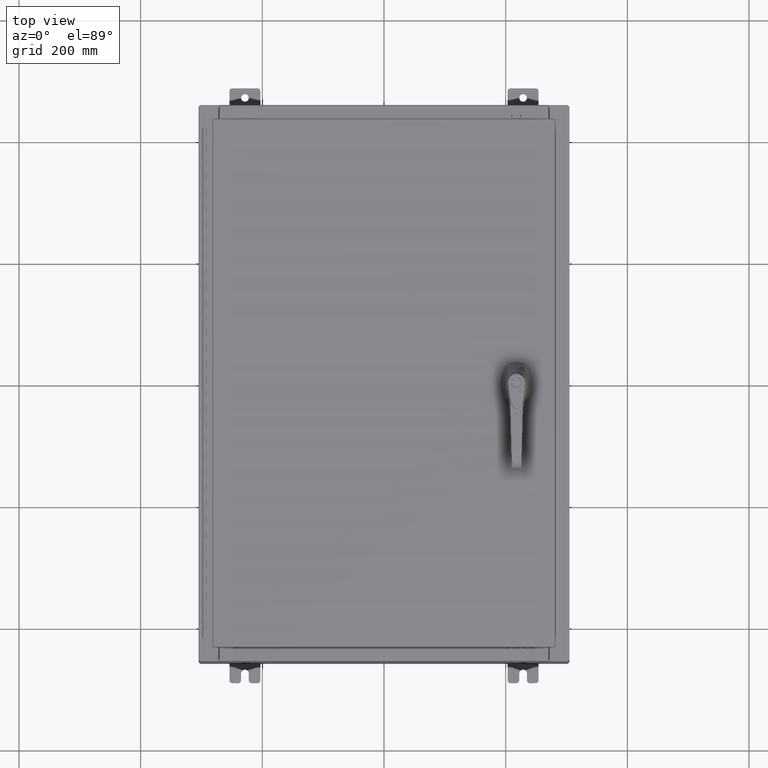
[diagram: clean part render]
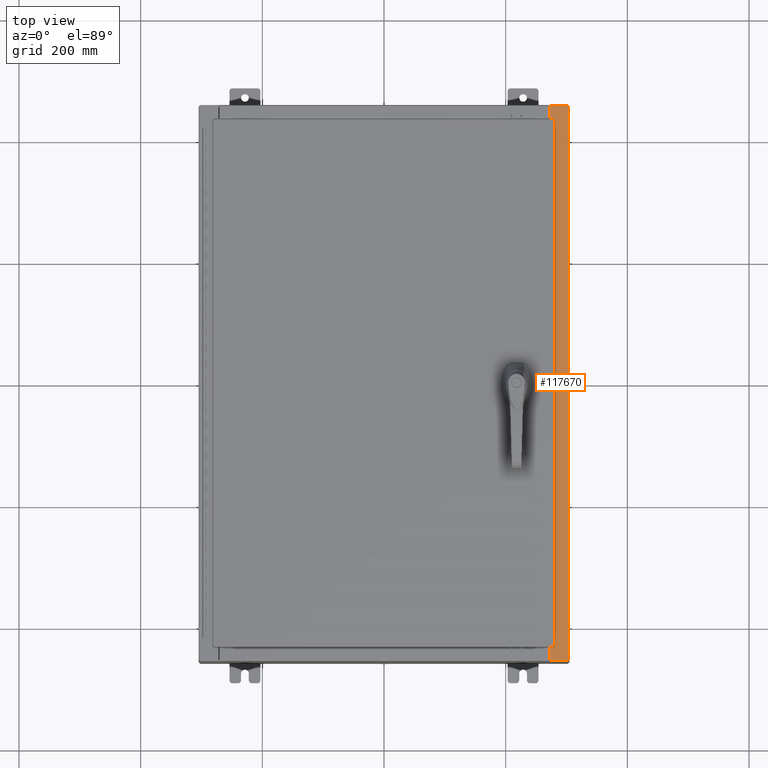
[diagram: same view with one face highlighted and labeled with its STEP entity id]
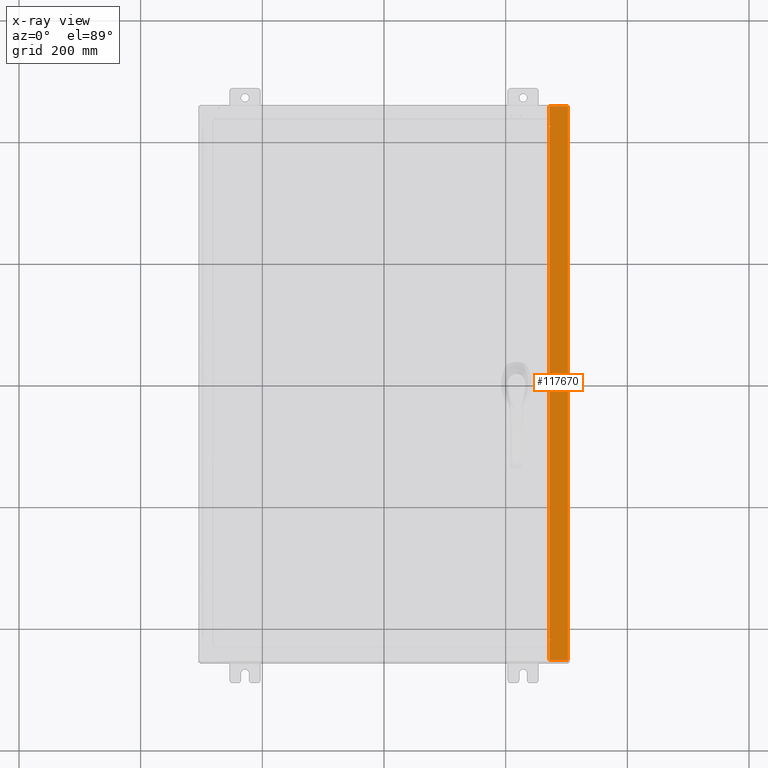
[diagram: x-ray of the same camera — body ghosted, the highlighted face saturated]
A machine part, top view. The second image highlights one B-rep face of the part: STEP entity #117670.
The next image is the same camera in x-ray: the body ghosted, the highlighted face saturated — about 0% of this face is hidden behind the body in this view.
In plain terms, the highlighted planar face has unit normal (-0, -0, -1).
Its self-contained STEP definition (entity closure, byte-faithful):
#549 = DIRECTION ( 'NONE',  ( 1.000000000000000000, 0.0000000000000000000, 0.0000000000000000000 ) ) ;
#1164 = DIRECTION ( 'NONE',  ( -1.000000000000000000, 0.0000000000000000000, 5.349571789159788500E-015 ) ) ;
#1321 = EDGE_CURVE ( 'NONE', #24871, #25478, #8442, .T. ) ;
#1745 = CARTESIAN_POINT ( 'NONE',  ( 10.71270000000003500, 16.59374999999999600, 9.925300000000016000 ) ) ;
#3177 = AXIS2_PLACEMENT_3D ( 'NONE', #113254, #56902, #549 ) ;
#3524 = CARTESIAN_POINT ( 'NONE',  ( 10.75005000000003400, 16.59374999999999600, 9.925300000000007100 ) ) ;
#4169 = DIRECTION ( 'NONE',  ( 1.000000000000000000, 0.0000000000000000000, 0.0000000000000000000 ) ) ;
#4224 = ORIENTED_EDGE ( 'NONE', *, *, #82835, .F. ) ;
#8442 = LINE ( 'NONE', #104490, #33521 ) ;
#10515 = LINE ( 'NONE', #18525, #104672 ) ;
#10868 = CIRCLE ( 'NONE', #3177, 0.01867499999999949400 ) ;
#10922 = CARTESIAN_POINT ( 'NONE',  ( 11.91230000000003700, 17.92529999999999600, 9.925300000000001800 ) ) ;
#11077 = DIRECTION ( 'NONE',  ( 0.0000000000000000000, -1.000000000000000000, 6.096072018129155300E-017 ) ) ;
#13146 = LINE ( 'NONE', #49000, #82243 ) ;
#15502 = EDGE_CURVE ( 'NONE', #104935, #90825, #10868, .T. ) ;
#17698 = VECTOR ( 'NONE', #72622, 39.37007874015748100 ) ;
#18525 = CARTESIAN_POINT ( 'NONE',  ( 10.75005000000003400, 16.63109999999999300, 9.925300000000016000 ) ) ;
#19036 = CARTESIAN_POINT ( 'NONE',  ( 5.335691853495957800E-014, 17.92529999999999600, 9.925300000000065700 ) ) ;
#19434 = VERTEX_POINT ( 'NONE', #50775 ) ;
#19726 = CARTESIAN_POINT ( 'NONE',  ( 5.335691853495958500E-014, 6.050534360153771000E-016, 9.925300000000065700 ) ) ;
#20331 = ORIENTED_EDGE ( 'NONE', *, *, #64258, .F. ) ;
#21972 = DIRECTION ( 'NONE',  ( 1.000000000000000000, 0.0000000000000000000, 0.0000000000000000000 ) ) ;
#24507 = LINE ( 'NONE', #86687, #99500 ) ;
#24871 = VERTEX_POINT ( 'NONE', #95844 ) ;
#24898 = ORIENTED_EDGE ( 'NONE', *, *, #41108, .T. ) ;
#25478 = VERTEX_POINT ( 'NONE', #62726 ) ;
#26260 = DIRECTION ( 'NONE',  ( 0.0000000000000000000, -1.000000000000000000, 6.096072018129155300E-017 ) ) ;
#27337 = ORIENTED_EDGE ( 'NONE', *, *, #41671, .T. ) ;
#28392 = DIRECTION ( 'NONE',  ( -1.000000000000000000, 0.0000000000000000000, -8.681145560800575300E-014 ) ) ;
#28600 = VERTEX_POINT ( 'NONE', #70900 ) ;
#29877 = ORIENTED_EDGE ( 'NONE', *, *, #93629, .F. ) ;
#30611 = VERTEX_POINT ( 'NONE', #10922 ) ;
#31381 = ORIENTED_EDGE ( 'NONE', *, *, #60374, .F. ) ;
#31906 = ORIENTED_EDGE ( 'NONE', *, *, #68944, .T. ) ;
#32871 = EDGE_LOOP ( 'NONE', ( #43965, #31906, #24898, #20331, #27337, #41107, #4224, #106042, #115258, #29877, #81288, #31381 ) ) ;
#33418 = VERTEX_POINT ( 'NONE', #47260 ) ;
#33521 = VECTOR ( 'NONE', #92825, 39.37007874015748100 ) ;
#38419 = FACE_OUTER_BOUND ( 'NONE', #32871, .T. ) ;
#41107 = ORIENTED_EDGE ( 'NONE', *, *, #77414, .T. ) ;
#41108 = EDGE_CURVE ( 'NONE', #94391, #33418, #67693, .T. ) ;
#41671 = EDGE_CURVE ( 'NONE', #30611, #107401, #57293, .T. ) ;
#42573 = VERTEX_POINT ( 'NONE', #1745 ) ;
#43965 = ORIENTED_EDGE ( 'NONE', *, *, #1321, .F. ) ;
#45138 = CARTESIAN_POINT ( 'NONE',  ( 10.69970000000003700, 6.050534360153735500E-016, 9.925300000000008900 ) ) ;
#47260 = CARTESIAN_POINT ( 'NONE',  ( 11.91230000000003700, -17.92530000000000000, 9.925300000000001800 ) ) ;
#48156 = DIRECTION ( 'NONE',  ( -6.096072018129156600E-017, -1.000000000000000000, 6.096072018129187400E-017 ) ) ;
#48873 = LINE ( 'NONE', #97173, #51840 ) ;
#49000 = CARTESIAN_POINT ( 'NONE',  ( 10.75005000000003400, -16.59374999999999600, 9.925300000000016000 ) ) ;
#50775 = CARTESIAN_POINT ( 'NONE',  ( 10.69970000000003700, 16.63109999999999600, 9.925300000000008900 ) ) ;
#51840 = VECTOR ( 'NONE', #21972, 39.37007874015748100 ) ;
#54354 = VECTOR ( 'NONE', #93832, 39.37007874015748100 ) ;
#55373 = CIRCLE ( 'NONE', #92307, 0.01867499999999949400 ) ;
#56902 = DIRECTION ( 'NONE',  ( 5.349571789159788500E-015, 6.096072018129155300E-017, 1.000000000000000000 ) ) ;
#57293 = LINE ( 'NONE', #19036, #54354 ) ;
#57482 = DIRECTION ( 'NONE',  ( -5.349571789159788500E-015, -6.096072018129155300E-017, -1.000000000000000000 ) ) ;
#60374 = EDGE_CURVE ( 'NONE', #25478, #28600, #55373, .T. ) ;
#60438 = DIRECTION ( 'NONE',  ( 5.349571789159788500E-015, 6.096072018129155300E-017, 1.000000000000000000 ) ) ;
#62726 = CARTESIAN_POINT ( 'NONE',  ( 10.75005000000003400, -16.63109999999999600, 9.925300000000008900 ) ) ;
#64258 = EDGE_CURVE ( 'NONE', #30611, #33418, #76708, .T. ) ;
#67693 = LINE ( 'NONE', #91543, #17698 ) ;
#68944 = EDGE_CURVE ( 'NONE', #24871, #94391, #24507, .T. ) ;
#70900 = CARTESIAN_POINT ( 'NONE',  ( 10.75005000000003400, -16.59374999999999600, 9.925300000000008900 ) ) ;
#72622 = DIRECTION ( 'NONE',  ( 1.000000000000000000, 0.0000000000000000000, -5.349571789159789300E-015 ) ) ;
#73313 = CARTESIAN_POINT ( 'NONE',  ( 10.71270000000003500, -16.59374999999999600, 9.925300000000016000 ) ) ;
#75140 = CARTESIAN_POINT ( 'NONE',  ( 10.69970000000003700, 17.92529999999999600, 9.925300000000008900 ) ) ;
#76265 = AXIS2_PLACEMENT_3D ( 'NONE', #19726, #57482, #1164 ) ;
#76708 = LINE ( 'NONE', #104471, #101752 ) ;
#77414 = EDGE_CURVE ( 'NONE', #107401, #19434, #105909, .T. ) ;
#80897 = VECTOR ( 'NONE', #26260, 39.37007874015748100 ) ;
#81288 = ORIENTED_EDGE ( 'NONE', *, *, #85331, .F. ) ;
#82243 = VECTOR ( 'NONE', #95858, 39.37007874015748100 ) ;
#82835 = EDGE_CURVE ( 'NONE', #90825, #19434, #10515, .T. ) ;
#83295 = VECTOR ( 'NONE', #108141, 39.37007874015748100 ) ;
#85331 = EDGE_CURVE ( 'NONE', #28600, #111554, #13146, .T. ) ;
#86687 = CARTESIAN_POINT ( 'NONE',  ( 10.69970000000003700, 6.050534360153735500E-016, 9.925300000000008900 ) ) ;
#89807 = CARTESIAN_POINT ( 'NONE',  ( 10.75005000000003400, 16.63109999999999300, 9.925300000000008900 ) ) ;
#90825 = VERTEX_POINT ( 'NONE', #89807 ) ;
#91543 = CARTESIAN_POINT ( 'NONE',  ( 5.335691853495959100E-014, -17.92530000000000000, 9.925300000000067500 ) ) ;
#92307 = AXIS2_PLACEMENT_3D ( 'NONE', #116776, #60438, #4169 ) ;
#92825 = DIRECTION ( 'NONE',  ( 1.000000000000000000, 0.0000000000000000000, 8.681145560800575300E-014 ) ) ;
#93629 = EDGE_CURVE ( 'NONE', #111554, #42573, #106663, .T. ) ;
#93832 = DIRECTION ( 'NONE',  ( -1.000000000000000000, 0.0000000000000000000, 5.349571789159789300E-015 ) ) ;
#94391 = VERTEX_POINT ( 'NONE', #95515 ) ;
#95515 = CARTESIAN_POINT ( 'NONE',  ( 10.69970000000003700, -17.92530000000000000, 9.925300000000010700 ) ) ;
#95844 = CARTESIAN_POINT ( 'NONE',  ( 10.69970000000003700, -16.63109999999999600, 9.925300000000008900 ) ) ;
#95858 = DIRECTION ( 'NONE',  ( -1.000000000000000000, 0.0000000000000000000, 0.0000000000000000000 ) ) ;
#97173 = CARTESIAN_POINT ( 'NONE',  ( 10.71270000000003500, 16.59374999999999600, 9.925300000000016000 ) ) ;
#97998 = EDGE_CURVE ( 'NONE', #42573, #104935, #48873, .T. ) ;
#98696 = CARTESIAN_POINT ( 'NONE',  ( 10.71270000000003500, -16.59375000000000000, 9.925300000000016000 ) ) ;
#99500 = VECTOR ( 'NONE', #11077, 39.37007874015748100 ) ;
#101752 = VECTOR ( 'NONE', #48156, 39.37007874015748100 ) ;
#104392 = PLANE ( 'NONE',  #76265 ) ;
#104471 = CARTESIAN_POINT ( 'NONE',  ( 11.91230000000003600, -17.92530000000000000, 9.925300000000001800 ) ) ;
#104490 = CARTESIAN_POINT ( 'NONE',  ( 10.69970000000003700, -16.63109999999999600, 9.925300000000010700 ) ) ;
#104672 = VECTOR ( 'NONE', #28392, 39.37007874015748100 ) ;
#104935 = VERTEX_POINT ( 'NONE', #3524 ) ;
#105909 = LINE ( 'NONE', #45138, #80897 ) ;
#106042 = ORIENTED_EDGE ( 'NONE', *, *, #15502, .F. ) ;
#106663 = LINE ( 'NONE', #98696, #83295 ) ;
#107401 = VERTEX_POINT ( 'NONE', #75140 ) ;
#108141 = DIRECTION ( 'NONE',  ( -0.0000000000000000000, 1.000000000000000000, -0.0000000000000000000 ) ) ;
#111554 = VERTEX_POINT ( 'NONE', #73313 ) ;
#113254 = CARTESIAN_POINT ( 'NONE',  ( 10.75005000000003400, 16.61242499999999500, 9.925300000000016000 ) ) ;
#115258 = ORIENTED_EDGE ( 'NONE', *, *, #97998, .F. ) ;
#116776 = CARTESIAN_POINT ( 'NONE',  ( 10.75005000000003400, -16.61242499999999800, 9.925300000000016000 ) ) ;
#117670 = ADVANCED_FACE ( 'NONE', ( #38419 ), #104392, .F. ) ;